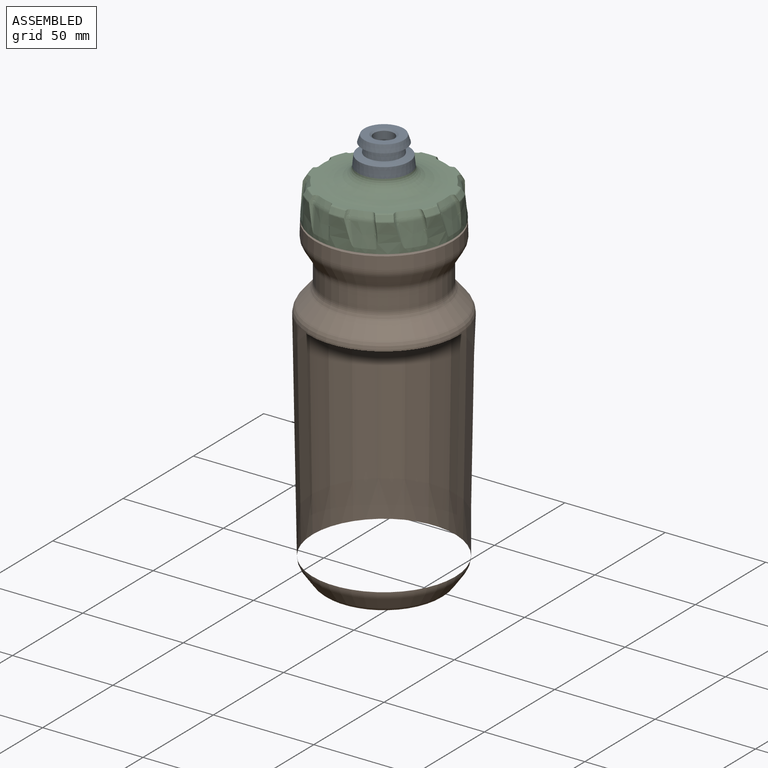
[diagram: assembled view]
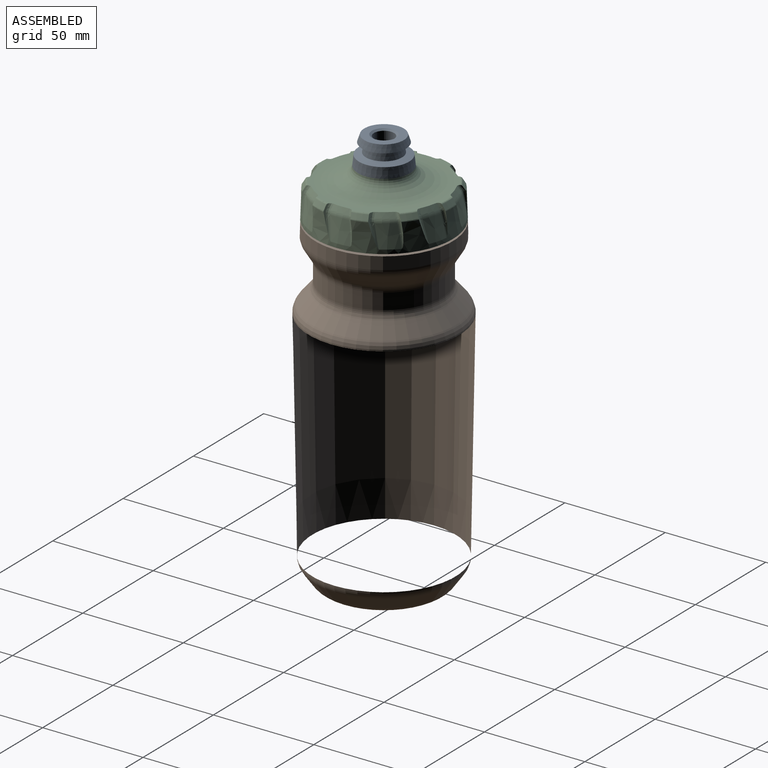
[diagram: assembled view, second angle]
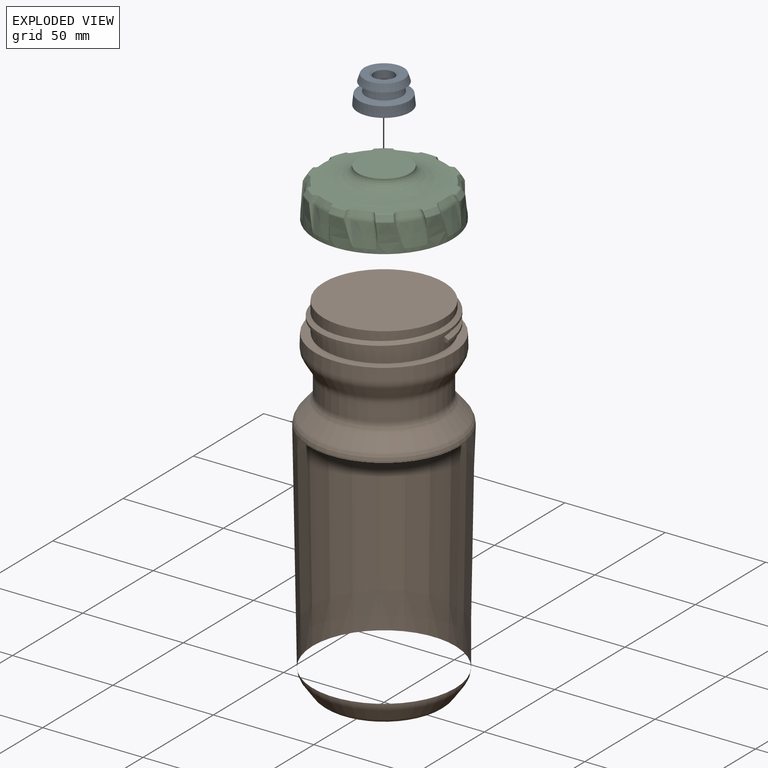
[diagram: exploded view]
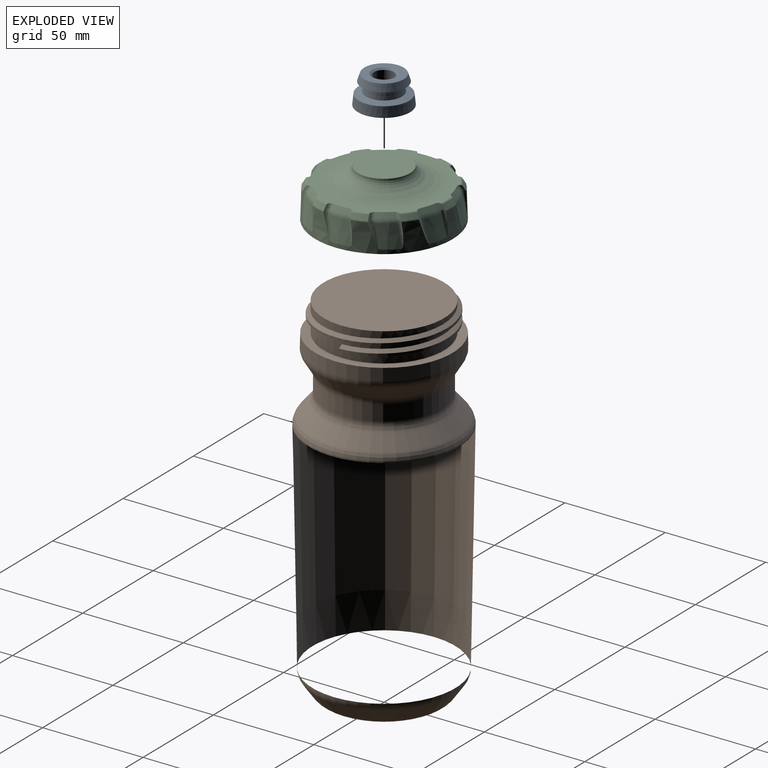
[diagram: exploded view, second angle]
ASSEMBLY  parts=3 mates=4
PART A: 9 faces, bbox 26x26x14 mm
  f0: cylinder r=5mm len=13.25mm, axis (0,0,-1), area 416.3mm2, adj f1,f8
  f1: plane 26x26mm, normal (0,0,-1), area 452.4mm2, adj f0,f2
  f2: cone r=12.47mm half-angle=6deg, axis (0,0,-1), area 402.4mm2, adj f1,f3
  f3: cone r=9mm half-angle=73.9deg, axis (0,0,-1), area 243.9mm2, adj f2,f4
  f4: cone r=8.43mm half-angle=8.9deg, axis (0,0,-1), area 202.2mm2, adj f3,f5
  f5: cone r=11mm half-angle=71.7deg, axis (0,0,1), area 165.3mm2, adj f4,f6
  f6: cone r=9.84mm half-angle=18.3deg, axis (0,0,-1), area 241.4mm2, adj f5,f7
  f7: plane 19.68x19.68mm, normal (0,0,1), area 191.1mm2, adj f6,f8
  f8: cone r=6mm half-angle=53.1deg, axis (0,0,1), area 43.2mm2, adj f0,f7
PART B: 22 faces, bbox 81.1x81.1x177.5 mm
  f0: cylinder r=30mm len=60mm, axis (0,0,-1), area 1136.4mm2, adj f1,f2,f11,f13
  f1: cylinder r=30mm len=60mm, axis (0,0,-1), area 889.9mm2, adj f0,f10,f12,f13,f14
  f2: plane 68.5x68.5mm, normal (0,0,1), area 857.9mm2, adj f0,f9
  f3: plane 49.61x49.61mm, normal (0,0,-1), area 1932.8mm2, adj f16
  f4: cone r=28.08mm half-angle=35.4deg, axis (0,0,1), area 1527.6mm2, adj f16,f17
  f5: cone r=35.5mm half-angle=1deg, axis (0,0,1), area 25046.3mm2, adj f17,f18
  f6: cone r=37.5mm half-angle=40.4deg, axis (0,0,-1), area 1752.2mm2, adj f18,f19
  f7: cylinder r=29mm len=58mm, axis (0,0,1), area 1435.7mm2, adj f19,f20
  f8: cone r=29mm half-angle=31.4deg, axis (0,0,1), area 1368.6mm2, adj f20,f21
  f9: cone r=34.5mm half-angle=1.8deg, axis (0,0,-1), area 1318.5mm2, adj f2,f21
  f10: plane 60x60mm, normal (0,0,1), area 2827.4mm2, adj f1
  f11: plane 2.5x2mm, normal (0,-1,0), area 3.8mm2, adj f0,f13,f14,f15
  f12: plane 2.5x2mm, normal (0,-1,0), area 3.8mm2, adj f1,f13,f14,f15
  f13: bspline ~73.9x64mm, area 584.5mm2, adj f0,f1,f11,f12,f15
  f14: bspline ~73.9x64mm, area 689.5mm2, adj f1,f11,f12,f15
  f15: cylinder r=32mm len=64mm, axis (0,0,1), area 377mm2, adj f11,f12,f13,f14
  f16: torus R=24.8mm, axis (0,0,1), area 1049mm2, adj f3,f4
  f17: torus R=29.19mm, axis (0,0,-1), area 842mm2, adj f4,f5
  f18: torus R=31.11mm, axis (0,0,-1), area 1064.8mm2, adj f5,f6
  f19: torus R=35.35mm, axis (0,0,1), area 829.5mm2, adj f6,f7
  f20: torus R=35.35mm, axis (0,0,1), area 641.6mm2, adj f7,f8
  f21: torus R=28.09mm, axis (0,0,-1), area 789.9mm2, adj f8,f9
PART C: 175 faces, bbox 86x88.9x24.5 mm
  f0: plane 62.91x61.94mm, normal (0,0,1), area 380.4mm2, adj f2,f5,f8,f11,f14,f17,f20,f23
  f1: cone r=33.76mm half-angle=32deg, axis (0,0,-1), area 20.7mm2, adj f2,f3,f148,f149,f173,f174
  f2: torus R=31.33mm, axis (0,0,1), area 7.9mm2, adj f0,f1,f148,f174
  f3: torus R=32.77mm, axis (0,0,1), area 4mm2, adj f1,f29,f149,f161,f172
  f4: cone r=33.76mm half-angle=32deg, axis (0,0,-1), area 20.7mm2, adj f5,f6,f134,f135,f159,f160
  f5: torus R=31.33mm, axis (0,0,1), area 7.9mm2, adj f0,f4,f134,f160
  f6: torus R=32.77mm, axis (0,0,1), area 4mm2, adj f4,f29,f135,f147,f158
  f7: cone r=33.76mm half-angle=32deg, axis (0,0,-1), area 20.7mm2, adj f8,f9,f120,f121,f145,f146
  f8: torus R=31.33mm, axis (0,0,1), area 7.9mm2, adj f0,f7,f120,f146
  f9: torus R=32.77mm, axis (0,0,1), area 4mm2, adj f7,f29,f121,f133,f144
  f10: cone r=33.76mm half-angle=32deg, axis (0,0,-1), area 20.7mm2, adj f11,f12,f106,f107,f131,f132
  f11: torus R=31.33mm, axis (0,0,1), area 7.9mm2, adj f0,f10,f106,f132
  f12: torus R=32.77mm, axis (0,0,1), area 4mm2, adj f10,f29,f107,f119,f130
  f13: cone r=33.76mm half-angle=32deg, axis (0,0,-1), area 20.7mm2, adj f14,f15,f92,f93,f117,f118
  f14: torus R=31.33mm, axis (0,0,1), area 7.9mm2, adj f0,f13,f92,f118
  f15: torus R=32.77mm, axis (0,0,1), area 4mm2, adj f13,f29,f93,f105,f116
  f16: cone r=33.76mm half-angle=32deg, axis (0,0,-1), area 20.7mm2, adj f17,f18,f78,f79,f103,f104
  f17: torus R=31.33mm, axis (0,0,1), area 7.9mm2, adj f0,f16,f78,f104
  f18: torus R=32.77mm, axis (0,0,1), area 4mm2, adj f16,f29,f79,f91,f102
  f19: cone r=33.76mm half-angle=32deg, axis (0,0,-1), area 20.7mm2, adj f20,f21,f64,f65,f89,f90
  f20: torus R=31.33mm, axis (0,0,1), area 7.9mm2, adj f0,f19,f64,f90
  f21: torus R=32.77mm, axis (0,0,1), area 4mm2, adj f19,f29,f65,f77,f88
  f22: cone r=33.76mm half-angle=32deg, axis (0,0,-1), area 20.7mm2, adj f23,f24,f50,f51,f75,f76
  f23: torus R=31.33mm, axis (0,0,1), area 7.9mm2, adj f0,f22,f50,f76
  f24: torus R=32.77mm, axis (0,0,1), area 4mm2, adj f22,f29,f51,f63,f74
  f25: cone r=33.76mm half-angle=32deg, axis (0,0,-1), area 20.7mm2, adj f26,f27,f36,f37,f61,f62
  f26: torus R=31.33mm, axis (0,0,1), area 7.9mm2, adj f0,f25,f36,f62
  f27: torus R=32.77mm, axis (0,0,1), area 4mm2, adj f25,f29,f37,f49,f60
  f28: plane 68.5x68.5mm, normal (0,0,-1), area 3685.3mm2, adj f29
  f29: cone r=34.25mm half-angle=2deg, axis (0,0,-1), area 1490mm2, adj f3,f6,f9,f12,f15,f18,f21,f24
  f30: revolved ~57.31x57.31mm, area 2301mm2, adj f0,f31
  f31: plane 26x26mm, normal (0,0,1), area 530.9mm2, adj f30
  f32: cone r=33.76mm half-angle=32deg, axis (0,0,-1), area 20.7mm2, adj f33,f34,f47,f48,f162,f163
  f33: torus R=31.33mm, axis (0,0,1), area 7.9mm2, adj f0,f32,f48,f162
  f34: torus R=32.77mm, axis (0,0,1), area 4mm2, adj f29,f32,f35,f46,f163
  f35: bspline ~15x9.51mm, area 0mm2, adj f29,f34,f45
  f36: bspline ~25.1x15mm, area 0.6mm2, adj f25,f26,f37
  f37: bspline ~15x13.17mm, area 5.2mm2, adj f0,f25,f27,f29,f36,f41,f42,f43
  f38: cone r=32.14mm half-angle=9.7deg, axis (0,0,-1), area 103.2mm2, adj f29,f40,f41,f44
  f39: cone r=30.16mm half-angle=32.5deg, axis (0,0,-1), area 22.9mm2, adj f0,f40,f42,f48
  f40: torus R=27.38mm, axis (0,0,-1), area 18.6mm2, adj f38,f39,f43,f45,f46,f47
  f41: bspline ~14.84x4.48mm, area 14.8mm2, adj f29,f37,f38,f43
  f42: bspline ~4.67x3.13mm, area 4.2mm2, adj f0,f37,f39,f43
  f43: bspline ~4.92x2.29mm, area 4.3mm2, adj f37,f40,f41,f42
  f44: bspline ~15.65x4.2mm, area 12.7mm2, adj f29,f38,f45
  f45: bspline ~2.53x2.13mm, area 1.5mm2, adj f29,f35,f40,f44,f46
  f46: bspline ~1.7x1.26mm, area 0.2mm2, adj f34,f40,f45,f47
  f47: bspline ~2.81x2.4mm, area 3.5mm2, adj f32,f40,f46,f48
  f48: bspline ~3.22x2.26mm, area 4.8mm2, adj f0,f32,f33,f39,f47
  f49: bspline ~15x10.4mm, area 0mm2, adj f27,f29,f59
  f50: bspline ~20.06x18.38mm, area 0.6mm2, adj f22,f23,f51
  f51: bspline ~15x12.88mm, area 5.2mm2, adj f0,f22,f24,f29,f50,f55,f56,f57
  f52: cone r=32.14mm half-angle=9.7deg, axis (0,0,-1), area 103.2mm2, adj f29,f54,f55,f58
  f53: cone r=30.16mm half-angle=32.5deg, axis (0,0,-1), area 22.9mm2, adj f0,f54,f56,f62
  f54: torus R=27.38mm, axis (0,0,-1), area 18.6mm2, adj f52,f53,f57,f59,f60,f61
  f55: bspline ~14.84x4.59mm, area 14.8mm2, adj f29,f51,f52,f57
  f56: bspline ~4.67x3.69mm, area 4.2mm2, adj f0,f51,f53,f57
  f57: bspline ~3.85x2.56mm, area 4.3mm2, adj f51,f54,f55,f56
  f58: bspline ~15.65x5.03mm, area 12.7mm2, adj f29,f52,f59
  f59: bspline ~2.53x2.52mm, area 1.5mm2, adj f29,f49,f54,f58,f60
  f60: bspline ~2x0.83mm, area 0.2mm2, adj f27,f54,f59,f61
  f61: bspline ~2.97x2.81mm, area 3.5mm2, adj f25,f54,f60,f62
  f62: bspline ~5.14x4.32mm, area 4.8mm2, adj f0,f25,f26,f53,f61
  f63: bspline ~15x7.62mm, area 0mm2, adj f24,f29,f73
  f64: bspline ~25.31x15mm, area 0.6mm2, adj f19,f20,f65
  f65: bspline ~15x14.48mm, area 5.2mm2, adj f0,f19,f21,f29,f64,f69,f70,f71
  f66: cone r=32.14mm half-angle=9.7deg, axis (0,0,-1), area 103.2mm2, adj f29,f68,f69,f72
  f67: cone r=30.16mm half-angle=32.5deg, axis (0,0,-1), area 22.9mm2, adj f0,f68,f70,f76
  f68: torus R=27.38mm, axis (0,0,-1), area 18.6mm2, adj f66,f67,f71,f73,f74,f75
  f69: bspline ~14.84x4.94mm, area 14.8mm2, adj f29,f65,f66,f71
  f70: bspline ~4.67x3.57mm, area 4.2mm2, adj f0,f65,f67,f71
  f71: bspline ~4.92x2.38mm, area 4.3mm2, adj f65,f68,f69,f70
  f72: bspline ~15.65x4.97mm, area 12.7mm2, adj f29,f66,f73
  f73: bspline ~2.53x2.51mm, area 1.5mm2, adj f29,f63,f68,f72,f74
  f74: bspline ~1.99x0.84mm, area 0.2mm2, adj f24,f68,f73,f75
  f75: bspline ~2.81x2.73mm, area 3.5mm2, adj f22,f68,f74,f76
  f76: bspline ~3.22x2.78mm, area 4.8mm2, adj f0,f22,f23,f67,f75
  f77: bspline ~15x10.47mm, area 0mm2, adj f21,f29,f87
  f78: bspline ~22.44x16.94mm, area 0.6mm2, adj f16,f17,f79
  f79: bspline ~8.89x6.37mm, area 5.2mm2, adj f0,f16,f18,f29,f78,f83,f84,f85
  f80: cone r=32.14mm half-angle=9.7deg, axis (0,0,-1), area 103.2mm2, adj f29,f82,f83,f86
  f81: cone r=30.16mm half-angle=32.5deg, axis (0,0,-1), area 22.9mm2, adj f0,f82,f84,f90
  f82: torus R=27.38mm, axis (0,0,-1), area 18.6mm2, adj f80,f81,f85,f87,f88,f89
  f83: bspline ~14.84x4.12mm, area 14.8mm2, adj f29,f79,f80,f85
  f84: bspline ~4.67x3.2mm, area 4.2mm2, adj f0,f79,f81,f85
  f85: bspline ~4.92x2.34mm, area 4.3mm2, adj f79,f82,f83,f84
  f86: bspline ~15.65x4.31mm, area 12.7mm2, adj f29,f80,f87
  f87: bspline ~2.53x2.15mm, area 1.5mm2, adj f29,f77,f82,f86,f88
  f88: bspline ~1.7x1.26mm, area 0.2mm2, adj f21,f82,f87,f89
  f89: bspline ~2.81x2.66mm, area 3.5mm2, adj f19,f82,f88,f90
  f90: bspline ~3.22x2.8mm, area 4.8mm2, adj f0,f19,f20,f81,f89
  f91: bspline ~15x9.32mm, area 0mm2, adj f18,f29,f101
  f92: bspline ~23.05x15mm, area 0.6mm2, adj f13,f14,f93
  f93: bspline ~8.89x8.78mm, area 5.2mm2, adj f0,f13,f15,f29,f92,f97,f98,f99
  f94: cone r=32.14mm half-angle=9.7deg, axis (0,0,-1), area 103.2mm2, adj f29,f96,f97,f100
  f95: cone r=30.16mm half-angle=32.5deg, axis (0,0,-1), area 22.9mm2, adj f0,f96,f98,f104
  f96: torus R=27.38mm, axis (0,0,-1), area 18.6mm2, adj f94,f95,f99,f101,f102,f103
  f97: bspline ~14.84x4.91mm, area 14.8mm2, adj f29,f93,f94,f99
  f98: bspline ~4.68x3.82mm, area 4.2mm2, adj f0,f93,f95,f99
  f99: bspline ~4.92x2.58mm, area 4.3mm2, adj f93,f96,f97,f98
  f100: bspline ~15.65x5.26mm, area 12.7mm2, adj f29,f94,f101
  f101: bspline ~2.64x2.53mm, area 1.5mm2, adj f29,f91,f96,f100,f102
  f102: bspline ~2.1x0.79mm, area 0.2mm2, adj f18,f96,f101,f103
  f103: bspline ~3x2.81mm, area 3.5mm2, adj f16,f96,f102,f104
  f104: bspline ~5.14x4.17mm, area 4.8mm2, adj f0,f16,f17,f95,f103
  f105: bspline ~15x9.51mm, area 0mm2, adj f15,f29,f115
  f106: bspline ~25.1x15mm, area 0.6mm2, adj f10,f11,f107
  f107: bspline ~15x13.17mm, area 5.2mm2, adj f0,f10,f12,f29,f106,f111,f112,f113
  f108: cone r=32.14mm half-angle=9.7deg, axis (0,0,-1), area 103.2mm2, adj f29,f110,f111,f114
  f109: cone r=30.16mm half-angle=32.5deg, axis (0,0,-1), area 22.9mm2, adj f0,f110,f112,f118
  f110: torus R=27.38mm, axis (0,0,-1), area 18.6mm2, adj f108,f109,f113,f115,f116,f117
  f111: bspline ~14.84x4.48mm, area 14.8mm2, adj f29,f107,f108,f113
  f112: bspline ~4.67x3.13mm, area 4.2mm2, adj f0,f107,f109,f113
  f113: bspline ~4.92x2.29mm, area 4.3mm2, adj f107,f110,f111,f112
  f114: bspline ~15.65x4.2mm, area 12.7mm2, adj f29,f108,f115
  f115: bspline ~2.53x2.13mm, area 1.5mm2, adj f29,f105,f110,f114,f116
  f116: bspline ~1.7x1.26mm, area 0.2mm2, adj f15,f110,f115,f117
  f117: bspline ~2.81x2.4mm, area 3.5mm2, adj f13,f110,f116,f118
  f118: bspline ~3.22x2.26mm, area 4.8mm2, adj f0,f13,f14,f109,f117
  f119: bspline ~15x10.4mm, area 0mm2, adj f12,f29,f129
  f120: bspline ~20.06x18.38mm, area 0.6mm2, adj f7,f8,f121
  f121: bspline ~15x12.88mm, area 5.2mm2, adj f0,f7,f9,f29,f120,f125,f126,f127
  f122: cone r=32.14mm half-angle=9.7deg, axis (0,0,-1), area 103.2mm2, adj f29,f124,f125,f128
  f123: cone r=30.16mm half-angle=32.5deg, axis (0,0,-1), area 22.9mm2, adj f0,f124,f126,f132
  f124: torus R=27.38mm, axis (0,0,-1), area 18.6mm2, adj f122,f123,f127,f129,f130,f131
  f125: bspline ~14.84x4.59mm, area 14.8mm2, adj f29,f121,f122,f127
  f126: bspline ~4.67x3.69mm, area 4.2mm2, adj f0,f121,f123,f127
  f127: bspline ~4.92x2.56mm, area 4.3mm2, adj f121,f124,f125,f126
  f128: bspline ~15.65x5.03mm, area 12.7mm2, adj f29,f122,f129
  f129: bspline ~2.53x2.52mm, area 1.5mm2, adj f29,f119,f124,f128,f130
  f130: bspline ~2x0.83mm, area 0.2mm2, adj f12,f124,f129,f131
  f131: bspline ~2.97x2.81mm, area 3.5mm2, adj f10,f124,f130,f132
  f132: bspline ~5.14x4.32mm, area 4.8mm2, adj f0,f10,f11,f123,f131
  f133: bspline ~15x7.62mm, area 0mm2, adj f9,f29,f143
  f134: bspline ~25.31x15mm, area 0.6mm2, adj f4,f5,f135
  f135: bspline ~15x14.48mm, area 5.2mm2, adj f0,f4,f6,f29,f134,f139,f140,f141
  f136: cone r=32.14mm half-angle=9.7deg, axis (0,0,-1), area 103.2mm2, adj f29,f138,f139,f142
  f137: cone r=30.16mm half-angle=32.5deg, axis (0,0,-1), area 22.9mm2, adj f0,f138,f140,f146
  f138: torus R=27.38mm, axis (0,0,-1), area 18.6mm2, adj f136,f137,f141,f143,f144,f145
  f139: bspline ~14.84x4.94mm, area 14.8mm2, adj f29,f135,f136,f141
  f140: bspline ~4.67x3.57mm, area 4.2mm2, adj f0,f135,f137,f141
  f141: bspline ~4.92x2.38mm, area 4.3mm2, adj f135,f138,f139,f140
  f142: bspline ~15.65x4.97mm, area 12.7mm2, adj f29,f136,f143
  f143: bspline ~2.53x2.51mm, area 1.5mm2, adj f29,f133,f138,f142,f144
  f144: bspline ~1.99x0.84mm, area 0.2mm2, adj f9,f138,f143,f145
  f145: bspline ~2.81x2.73mm, area 3.5mm2, adj f7,f138,f144,f146
  f146: bspline ~3.22x2.78mm, area 4.8mm2, adj f0,f7,f8,f137,f145
  f147: bspline ~15x10.47mm, area 0mm2, adj f6,f29,f157
  f148: bspline ~22.44x16.94mm, area 0.6mm2, adj f1,f2,f149
  f149: bspline ~8.89x6.37mm, area 5.2mm2, adj f0,f1,f3,f29,f148,f153,f154,f155
  f150: cone r=32.14mm half-angle=9.7deg, axis (0,0,-1), area 103.2mm2, adj f29,f152,f153,f156
  f151: cone r=30.16mm half-angle=32.5deg, axis (0,0,-1), area 22.9mm2, adj f0,f152,f154,f160
  f152: torus R=27.38mm, axis (0,0,-1), area 18.6mm2, adj f150,f151,f155,f157,f158,f159
  f153: bspline ~14.84x4.12mm, area 14.8mm2, adj f29,f149,f150,f155
  f154: bspline ~4.67x3.2mm, area 4.2mm2, adj f0,f149,f151,f155
  f155: bspline ~4.92x2.34mm, area 4.3mm2, adj f149,f152,f153,f154
  f156: bspline ~15.65x4.31mm, area 12.7mm2, adj f29,f150,f157
  f157: bspline ~2.53x2.15mm, area 1.5mm2, adj f29,f147,f152,f156,f158
  f158: bspline ~1.7x1.26mm, area 0.2mm2, adj f6,f152,f157,f159
  f159: bspline ~2.81x2.66mm, area 3.5mm2, adj f4,f152,f158,f160
  f160: bspline ~3.22x2.8mm, area 4.8mm2, adj f0,f4,f5,f151,f159
  f161: bspline ~15x9.32mm, area 0mm2, adj f3,f29,f171
  f162: bspline ~23.05x15mm, area 0.6mm2, adj f32,f33,f163
  f163: bspline ~8.89x8.78mm, area 5.2mm2, adj f0,f29,f32,f34,f162,f167,f168,f169
  f164: cone r=32.14mm half-angle=9.7deg, axis (0,0,-1), area 103.2mm2, adj f29,f166,f167,f170
  f165: cone r=30.16mm half-angle=32.5deg, axis (0,0,-1), area 22.9mm2, adj f0,f166,f168,f174
  f166: torus R=27.38mm, axis (0,0,-1), area 18.6mm2, adj f164,f165,f169,f171,f172,f173
  f167: bspline ~14.84x4.91mm, area 14.8mm2, adj f29,f163,f164,f169
  f168: bspline ~4.68x3.82mm, area 4.2mm2, adj f0,f163,f165,f169
  f169: bspline ~3.85x2.58mm, area 4.3mm2, adj f163,f166,f167,f168
  f170: bspline ~15.65x5.26mm, area 12.7mm2, adj f29,f164,f171
  f171: bspline ~2.64x2.53mm, area 1.5mm2, adj f29,f161,f166,f170,f172
  f172: bspline ~2.1x0.79mm, area 0.2mm2, adj f3,f166,f171,f173
  f173: bspline ~3x2.81mm, area 3.5mm2, adj f1,f166,f172,f174
  f174: bspline ~5.14x4.17mm, area 4.8mm2, adj f0,f1,f2,f165,f173
PLACE A at identity
PLACE B at identity
PLACE C at identity
MATE fastened C.f1 <-> B.f0  axis (0,0,-1) through (0,0,164)mm
MATE cylindrical A.f0 <-> C.f1  axis (0,0,-1) through (0,0,188)mm
MATE cylindrical B.f0 <-> C.f1  axis (0,0,-1) through (0,0,170.25)mm
MATE fastened A.f0 <-> C.f1  axis (0,0,-1) through (0,0,188)mm
